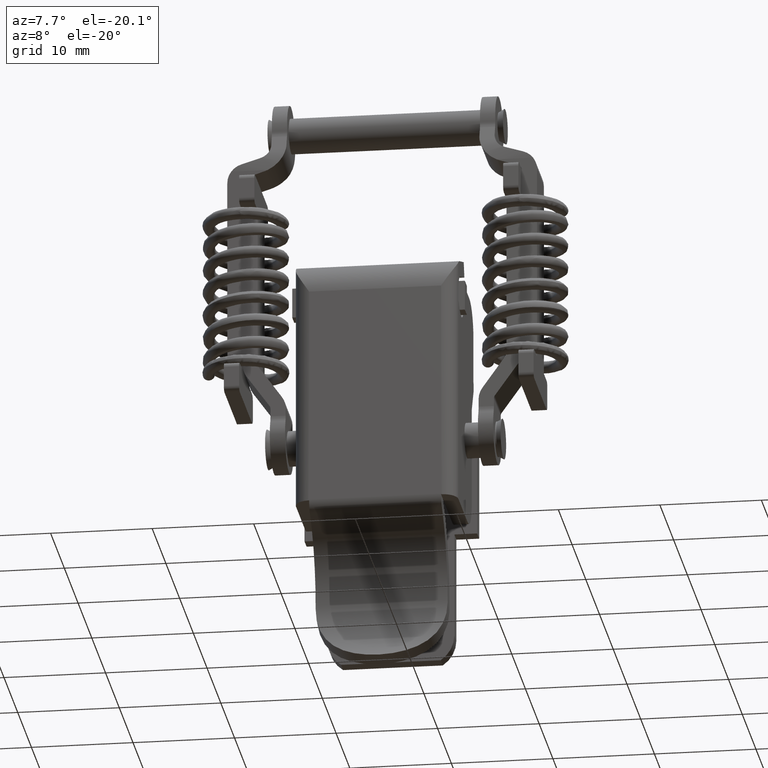
[diagram: clean part render]
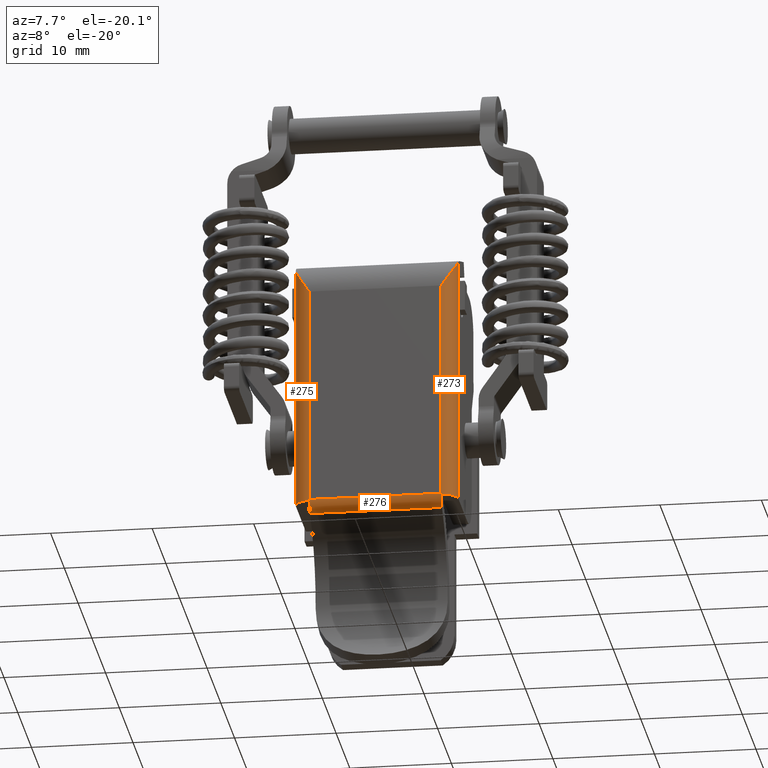
[diagram: same view with one multi-face feature highlighted, each face labeled with its STEP entity id]
A machine part, auxiliary view. The highlighted faces form ONE feature: a constant-radius fillet chain: 3 tangent blend faces with common blend radius 1.5 mm. The faces share edges in the B-rep.
Their STEP definitions:
[1] entity #276 (Cylinder):
#276=ADVANCED_FACE('',(#899),#898,.T.);
#898=CYLINDRICAL_SURFACE('',#2917,1.50000000000E+00);
#899=FACE_OUTER_BOUND('',#2918,.T.);
#2914=CARTESIAN_POINT('',(-7.91777118995E+00,1.50000000000E+00,9.81426582936E-02));
#2915=DIRECTION('',(-1.00000000000E+00,1.25781194831E-16,6.57347478934E-17));
#2916=DIRECTION('',(1.25781194831E-16,1.00000000000E+00,-1.46364402080E-14));
#2917=AXIS2_PLACEMENT_3D('',#2914,#2915,#2916);
#2918=EDGE_LOOP('',(#6450,#6451,#6452,#6453,#6454,#6455,#6456,#6457));
#6450=ORIENTED_EDGE('',*,*,#7518,.T.);
#6451=ORIENTED_EDGE('',*,*,#7512,.F.);
#6452=ORIENTED_EDGE('',*,*,#7521,.T.);
#6453=ORIENTED_EDGE('',*,*,#7509,.F.);
#6454=ORIENTED_EDGE('',*,*,#7394,.F.);
#6455=ORIENTED_EDGE('',*,*,#7391,.F.);
#6456=ORIENTED_EDGE('',*,*,#7398,.F.);
#6457=ORIENTED_EDGE('',*,*,#7508,.F.);
#7391=EDGE_CURVE('',#8008,#8016,#8017,.T.);
#7394=EDGE_CURVE('',#8016,#8036,#8037,.T.);
#7398=EDGE_CURVE('',#8055,#8008,#8062,.T.);
#7508=EDGE_CURVE('',#8790,#8055,#8797,.T.);
#7509=EDGE_CURVE('',#8036,#8803,#8804,.T.);
#7512=EDGE_CURVE('',#8822,#8823,#8824,.T.);
#7518=EDGE_CURVE('',#8790,#8823,#8862,.T.);
#7521=EDGE_CURVE('',#8822,#8803,#8882,.T.);
#8008=VERTEX_POINT('',#11989);
#8016=VERTEX_POINT('',#11995);
#8017=LINE('',#11996,#11997);
#8036=VERTEX_POINT('',#12042);
#8037=CIRCLE('',#12046,1.50000000000E+00);
#8055=VERTEX_POINT('',#12053);
#8062=CIRCLE('',#12060,1.50000000000E+00);
#8790=VERTEX_POINT('',#12489);
#8797=LINE('',#12494,#12495);
#8803=VERTEX_POINT('',#12497);
#8804=LINE('',#12498,#12499);
#8822=VERTEX_POINT('',#12508);
#8823=VERTEX_POINT('',#12509);
#8824=LINE('',#12510,#12511);
#8862=CIRCLE('',#12555,2.99718841261E+00);
#8882=CIRCLE('',#12569,2.99718841261E+00);
#11989=CARTESIAN_POINT('',(6.50000000000E+00,6.43590164302E-01,-1.13334513837E+00));
#11995=CARTESIAN_POINT('',(-6.50000000000E+00,6.43590164302E-01,-1.13334513837E+00));
#11996=CARTESIAN_POINT('',(6.50000000000E+00,6.43590164302E-01,-1.13334513837E+00));
#11997=VECTOR('',#11998,1.30000000000E+01);
#11998=DIRECTION('',(-1.00000000000E+00,0.00000000000E+00,0.00000000000E+00));
#12042=CARTESIAN_POINT('',(-6.50000000000E+00,3.21410394704E-03,0.00000000000E+00));
#12043=CARTESIAN_POINT('',(-6.50000000000E+00,1.50000000000E+00,9.81426582936E-02));
#12044=DIRECTION('',(-1.00000000000E+00,2.80079636817E-16,-1.94774935163E-16));
#12045=DIRECTION('',(2.46519032882E-31,5.70939890466E-01,8.20991864439E-01));
#12046=AXIS2_PLACEMENT_3D('',#12043,#12044,#12045);
#12053=CARTESIAN_POINT('',(6.50000000000E+00,3.21410394704E-03,0.00000000000E+00));
#12057=CARTESIAN_POINT('',(6.50000000000E+00,1.50000000000E+00,9.81426582936E-02));
#12058=DIRECTION('',(1.00000000000E+00,-5.29533095371E-15,-6.89089658124E-16));
#12059=DIRECTION('',(5.32907051820E-15,9.97857264035E-01,6.54284388624E-02));
#12060=AXIS2_PLACEMENT_3D('',#12057,#12058,#12059);
#12489=CARTESIAN_POINT('',(6.59814265829E+00,3.21410394704E-03,0.00000000000E+00));
#12494=CARTESIAN_POINT('',(6.59814265829E+00,3.21410394704E-03,0.00000000000E+00));
#12495=VECTOR('',#12496,9.81426582936E-02);
#12496=DIRECTION('',(-1.00000000000E+00,0.00000000000E+00,0.00000000000E+00));
#12497=CARTESIAN_POINT('',(-6.59814265829E+00,3.21410394704E-03,0.00000000000E+00));
#12498=CARTESIAN_POINT('',(-6.50000000000E+00,3.21410394704E-03,0.00000000000E+00));
#12499=VECTOR('',#12500,9.81426582935E-02);
#12500=DIRECTION('',(-1.00000000000E+00,0.00000000000E+00,0.00000000000E+00));
#12508=CARTESIAN_POINT('',(-6.50000000000E+00,0.00000000000E+00,9.81426582936E-02));
#12509=CARTESIAN_POINT('',(6.50000000000E+00,0.00000000000E+00,9.81426582936E-02));
#12510=CARTESIAN_POINT('',(-6.50000000000E+00,0.00000000000E+00,9.81426582936E-02));
#12511=VECTOR('',#12512,1.30000000000E+01);
#12512=DIRECTION('',(1.00000000000E+00,0.00000000000E+00,0.00000000000E+00));
#12552=CARTESIAN_POINT('',(6.50001972385E+00,2.99718841248E+00,9.81229344423E-02));
#12553=DIRECTION('',(-7.07106781187E-01,1.18606513499E-13,-7.07106781187E-01));
#12554=DIRECTION('',(-3.27383270364E-02,9.98927626951E-01,3.27383270366E-02));
#12555=AXIS2_PLACEMENT_3D('',#12552,#12553,#12554);
#12566=CARTESIAN_POINT('',(-6.50001972385E+00,2.99718841248E+00,9.81229344425E-02));
#12567=DIRECTION('',(7.07106781187E-01,1.86544808666E-13,-7.07106781187E-01));
#12568=DIRECTION('',(-6.58078480019E-06,9.99999999957E-01,-6.58078453638E-06));
#12569=AXIS2_PLACEMENT_3D('',#12566,#12567,#12568);
[2] entity #275 (Cylinder):
#275=ADVANCED_FACE('',(#889),#888,.T.);
#888=CYLINDRICAL_SURFACE('',#2912,1.50000000000E+00);
#889=FACE_OUTER_BOUND('',#2913,.T.);
#2909=CARTESIAN_POINT('',(-6.50000000000E+00,1.50000000000E+00,2.51670664232E-15));
#2910=DIRECTION('',(5.92118946467E-15,-2.73488026508E-15,-1.00000000000E+00));
#2911=DIRECTION('',(1.00000000000E+00,-2.04281036531E-14,5.92118946467E-15));
#2912=AXIS2_PLACEMENT_3D('',#2909,#2910,#2911);
#2913=EDGE_LOOP('',(#6443,#6444,#6445,#6446,#6447,#6448,#6449));
#6443=ORIENTED_EDGE('',*,*,#7479,.F.);
#6444=ORIENTED_EDGE('',*,*,#7510,.F.);
#6445=ORIENTED_EDGE('',*,*,#7521,.F.);
#6446=ORIENTED_EDGE('',*,*,#7515,.F.);
#6447=ORIENTED_EDGE('',*,*,#7517,.F.);
#6448=ORIENTED_EDGE('',*,*,#7489,.F.);
#6449=ORIENTED_EDGE('',*,*,#7505,.T.);
#7479=EDGE_CURVE('',#8597,#8498,#8604,.T.);
#7489=EDGE_CURVE('',#8666,#8674,#8675,.T.);
#7505=EDGE_CURVE('',#8666,#8498,#8778,.T.);
#7510=EDGE_CURVE('',#8803,#8597,#8810,.T.);
#7515=EDGE_CURVE('',#8837,#8822,#8844,.T.);
#7517=EDGE_CURVE('',#8674,#8837,#8856,.T.);
#7521=EDGE_CURVE('',#8822,#8803,#8882,.T.);
#8498=VERTEX_POINT('',#12317);
#8597=VERTEX_POINT('',#12375);
#8604=LINE('',#12379,#12380);
#8666=VERTEX_POINT('',#12418);
#8674=VERTEX_POINT('',#12424);
#8675=LINE('',#12425,#12426);
#8778=LINE('',#12483,#12484);
#8803=VERTEX_POINT('',#12497);
#8810=CIRCLE('',#12504,1.50000000000E+00);
#8822=VERTEX_POINT('',#12508);
#8837=VERTEX_POINT('',#12517);
#8844=LINE('',#12521,#12522);
#8856=(BOUNDED_CURVE() B_SPLINE_CURVE(3,(#12540,#12541,#12542,#12543,#12544,#12545,#12546,#12547,#12548,#12549,#12550,#12551),.UNSPECIFIED.,.F.,.F.) B_SPLINE_CURVE_WITH_KNOTS((4,2,2,2,2,4),(4.61009087360E-18,4.65844780096E-04,9.31689560192E-04,1.86337912038E-03,2.79506868057E-03,3.72675824077E-03),.UNSPECIFIED.) CURVE() GEOMETRIC_REPRESENTATION_ITEM() RATIONAL_B_SPLINE_CURVE((1.00000000000E+00,1.00000000000E+00,1.00000000000E+00,1.00000000000E+00,1.00000000000E+00,1.00000000000E+00,1.00000000000E+00,1.00000000000E+00,1.00000000000E+00,1.00000000000E+00,1.00000000000E+00,1.00000000000E+00)) REPRESENTATION_ITEM('') );
#8882=CIRCLE('',#12569,2.99718841261E+00);
#12317=CARTESIAN_POINT('',(-8.00000000000E+00,1.50000298831E+00,2.06506743654E+01));
#12375=CARTESIAN_POINT('',(-8.00000000000E+00,1.50000000000E+00,0.00000000000E+00));
#12379=CARTESIAN_POINT('',(-8.00000000000E+00,1.50000000000E+00,0.00000000000E+00));
#12380=VECTOR('',#12381,2.06506743654E+01);
#12381=DIRECTION('',(0.00000000000E+00,0.00000000000E+00,1.00000000000E+00));
#12418=CARTESIAN_POINT('',(-8.00000000000E+00,1.50000000000E+00,2.16951480700E+01));
#12424=CARTESIAN_POINT('',(-8.00000000000E+00,1.50000000000E+00,2.45674293933E+01));
#12425=CARTESIAN_POINT('',(-8.00000000000E+00,1.50000000000E+00,2.16951480700E+01));
#12426=VECTOR('',#12427,2.87228132327E+00);
#12427=DIRECTION('',(0.00000000000E+00,0.00000000000E+00,1.00000000000E+00));
#12483=CARTESIAN_POINT('',(-8.00000000000E+00,1.50000000000E+00,2.16951480700E+01));
#12484=VECTOR('',#12485,1.04447370463E+00);
#12485=DIRECTION('',(0.00000000000E+00,0.00000000000E+00,-1.00000000000E+00));
#12497=CARTESIAN_POINT('',(-6.59814265829E+00,3.21410394704E-03,0.00000000000E+00));
#12501=CARTESIAN_POINT('',(-6.50000000000E+00,1.50000000000E+00,0.00000000000E+00));
#12502=DIRECTION('',(-0.00000000000E+00,0.00000000000E+00,-1.00000000000E+00));
#12503=DIRECTION('',(6.54284388624E-02,9.97857264035E-01,-0.00000000000E+00));
#12504=AXIS2_PLACEMENT_3D('',#12501,#12502,#12503);
#12508=CARTESIAN_POINT('',(-6.50000000000E+00,0.00000000000E+00,9.81426582936E-02));
#12517=CARTESIAN_POINT('',(-6.50000000000E+00,4.33680868994E-16,2.16951480700E+01));
#12521=CARTESIAN_POINT('',(-6.50000000000E+00,0.00000000000E+00,2.16951480700E+01));
#12522=VECTOR('',#12523,2.15970054117E+01);
#12523=DIRECTION('',(0.00000000000E+00,0.00000000000E+00,-1.00000000000E+00));
#12540=CARTESIAN_POINT('',(-8.00000000000E+00,1.50000000000E+00,2.45674293933E+01));
#12541=CARTESIAN_POINT('',(-8.00000000000E+00,1.37041336032E+00,2.44771968394E+01));
#12542=CARTESIAN_POINT('',(-7.98355294348E+00,1.24984653414E+00,2.43803248292E+01));
#12543=CARTESIAN_POINT('',(-7.92731748669E+00,1.02432060714E+00,2.41739333354E+01));
#12544=CARTESIAN_POINT('',(-7.88685830460E+00,9.18545763609E-01,2.40632893869E+01));
#12545=CARTESIAN_POINT('',(-7.74187859407E+00,6.31900062309E-01,2.37229547254E+01));
#12546=CARTESIAN_POINT('',(-7.61425893342E+00,4.78229080425E-01,2.34828854972E+01));
#12547=CARTESIAN_POINT('',(-7.32655137522E+00,2.34139973409E-01,2.29840479443E+01));
#12548=CARTESIAN_POINT('',(-7.17001152178E+00,1.46757745010E-01,2.27319651809E+01));
#12549=CARTESIAN_POINT('',(-6.84296977647E+00,2.94382799622E-02,2.22190036699E+01));
#12550=CARTESIAN_POINT('',(-6.67010242378E+00,5.11607900142E-16,2.19549841595E+01));
#12551=CARTESIAN_POINT('',(-6.50000000000E+00,-1.10867685999E-27,2.16951480700E+01));
#12566=CARTESIAN_POINT('',(-6.50001972385E+00,2.99718841248E+00,9.81229344425E-02));
#12567=DIRECTION('',(7.07106781187E-01,1.86544808666E-13,-7.07106781187E-01));
#12568=DIRECTION('',(-6.58078480019E-06,9.99999999957E-01,-6.58078453638E-06));
#12569=AXIS2_PLACEMENT_3D('',#12566,#12567,#12568);
[3] entity #273 (Cylinder):
#273=ADVANCED_FACE('',(#868),#867,.T.);
#867=CYLINDRICAL_SURFACE('',#2901,1.50000000000E+00);
#868=FACE_OUTER_BOUND('',#2902,.T.);
#2898=CARTESIAN_POINT('',(6.50000000000E+00,1.50000000000E+00,2.45674293933E+01));
#2899=DIRECTION('',(-3.55271367880E-15,3.75806783593E-15,1.00000000000E+00));
#2900=DIRECTION('',(-1.00000000000E+00,2.62012633812E-14,-3.55271367880E-15));
#2901=AXIS2_PLACEMENT_3D('',#2898,#2899,#2900);
#2902=EDGE_LOOP('',(#6420,#6421,#6422,#6423,#6424,#6425,#6426));
#6420=ORIENTED_EDGE('',*,*,#7516,.F.);
#6421=ORIENTED_EDGE('',*,*,#7513,.F.);
#6422=ORIENTED_EDGE('',*,*,#7518,.F.);
#6423=ORIENTED_EDGE('',*,*,#7507,.F.);
#6424=ORIENTED_EDGE('',*,*,#7494,.F.);
#6425=ORIENTED_EDGE('',*,*,#7506,.F.);
#6426=ORIENTED_EDGE('',*,*,#7483,.F.);
#7483=EDGE_CURVE('',#8624,#8632,#8633,.T.);
#7494=EDGE_CURVE('',#8202,#8708,#8709,.T.);
#7506=EDGE_CURVE('',#8632,#8202,#8784,.T.);
#7507=EDGE_CURVE('',#8708,#8790,#8791,.T.);
#7513=EDGE_CURVE('',#8823,#8830,#8831,.T.);
#7516=EDGE_CURVE('',#8830,#8624,#8850,.T.);
#7518=EDGE_CURVE('',#8790,#8823,#8862,.T.);
#8202=VERTEX_POINT('',#12141);
#8624=VERTEX_POINT('',#12392);
#8632=VERTEX_POINT('',#12398);
#8633=LINE('',#12399,#12400);
#8708=VERTEX_POINT('',#12444);
#8709=LINE('',#12445,#12446);
#8784=LINE('',#12486,#12487);
#8790=VERTEX_POINT('',#12489);
#8791=CIRCLE('',#12493,1.50000000000E+00);
#8823=VERTEX_POINT('',#12509);
#8830=VERTEX_POINT('',#12513);
#8831=LINE('',#12514,#12515);
#8850=(BOUNDED_CURVE() B_SPLINE_CURVE(3,(#12524,#12525,#12526,#12527,#12528,#12529,#12530,#12531,#12532,#12533,#12534,#12535,#12536,#12537,#12538,#12539),.UNSPECIFIED.,.F.,.F.) B_SPLINE_CURVE_WITH_KNOTS((4,2,2,2,2,2,2,4),(-1.18321678488E-05,4.52071537899E-04,9.15975243646E-04,1.84378265514E-03,2.30768636089E-03,2.77159006664E-03,3.23549377238E-03,3.69939747813E-03),.UNSPECIFIED.) CURVE() GEOMETRIC_REPRESENTATION_ITEM() RATIONAL_B_SPLINE_CURVE((1.00000000000E+00,1.00000000000E+00,1.00000000000E+00,1.00000000000E+00,1.00000000000E+00,1.00000000000E+00,1.00000000000E+00,1.00000000000E+00,1.00000000000E+00,1.00000000000E+00,1.00000000000E+00,1.00000000000E+00,1.00000000000E+00,1.00000000000E+00,1.00000000000E+00,1.00000000000E+00)) REPRESENTATION_ITEM('') );
#8862=CIRCLE('',#12555,2.99718841261E+00);
#12141=CARTESIAN_POINT('',(8.00000000000E+00,1.50000000000E+00,2.06506764462E+01));
#12392=CARTESIAN_POINT('',(8.00000000000E+00,1.50000000000E+00,2.45674293933E+01));
#12398=CARTESIAN_POINT('',(8.00000000000E+00,1.50000000000E+00,2.16951480700E+01));
#12399=CARTESIAN_POINT('',(8.00000000000E+00,1.50000000000E+00,2.45674293933E+01));
#12400=VECTOR('',#12401,2.87228132327E+00);
#12401=DIRECTION('',(0.00000000000E+00,0.00000000000E+00,-1.00000000000E+00));
#12444=CARTESIAN_POINT('',(8.00000000000E+00,1.50000000000E+00,0.00000000000E+00));
#12445=CARTESIAN_POINT('',(8.00000000000E+00,1.50000000000E+00,2.06506764462E+01));
#12446=VECTOR('',#12447,2.06506764462E+01);
#12447=DIRECTION('',(0.00000000000E+00,0.00000000000E+00,-1.00000000000E+00));
#12486=CARTESIAN_POINT('',(8.00000000000E+00,1.50000000000E+00,2.16951480700E+01));
#12487=VECTOR('',#12488,1.04447162386E+00);
#12488=DIRECTION('',(0.00000000000E+00,0.00000000000E+00,-1.00000000000E+00));
#12489=CARTESIAN_POINT('',(6.59814265829E+00,3.21410394704E-03,0.00000000000E+00));
#12490=CARTESIAN_POINT('',(6.50000000000E+00,1.50000000000E+00,0.00000000000E+00));
#12491=DIRECTION('',(0.00000000000E+00,0.00000000000E+00,-1.00000000000E+00));
#12492=DIRECTION('',(-1.00000000000E+00,-0.00000000000E+00,-0.00000000000E+00));
#12493=AXIS2_PLACEMENT_3D('',#12490,#12491,#12492);
#12509=CARTESIAN_POINT('',(6.50000000000E+00,0.00000000000E+00,9.81426582936E-02));
#12513=CARTESIAN_POINT('',(6.50000000000E+00,0.00000000000E+00,2.16951480700E+01));
#12514=CARTESIAN_POINT('',(6.50000000000E+00,0.00000000000E+00,9.81426582936E-02));
#12515=VECTOR('',#12516,2.15970054117E+01);
#12516=DIRECTION('',(0.00000000000E+00,0.00000000000E+00,1.00000000000E+00));
#12524=CARTESIAN_POINT('',(6.50000000000E+00,1.81135736711E-15,2.16951480700E+01));
#12525=CARTESIAN_POINT('',(6.58469682169E+00,2.29175351791E-15,2.18245247745E+01));
#12526=CARTESIAN_POINT('',(6.67083557907E+00,7.31651955111E-03,2.19561045751E+01));
#12527=CARTESIAN_POINT('',(6.83909937457E+00,3.63400729517E-02,2.22147595613E+01));
#12528=CARTESIAN_POINT('',(6.92223072152E+00,5.80412945653E-02,2.23433612664E+01));
#12529=CARTESIAN_POINT('',(7.16732423328E+00,1.45462023720E-01,2.27276766543E+01));
#12530=CARTESIAN_POINT('',(7.32698753194E+00,2.34587379329E-01,2.29848376443E+01));
#12531=CARTESIAN_POINT('',(7.54157484628E+00,4.16525861300E-01,2.33568465780E+01));
#12532=CARTESIAN_POINT('',(7.60898555055E+00,4.85106262252E-01,2.34786103770E+01));
#12533=CARTESIAN_POINT('',(7.73308058676E+00,6.40133430808E-01,2.37178900844E+01));
#12534=CARTESIAN_POINT('',(7.79018753714E+00,7.27400635264E-01,2.38363502012E+01));
#12535=CARTESIAN_POINT('',(7.88695087342E+00,9.18741938454E-01,2.40635147274E+01));
#12536=CARTESIAN_POINT('',(7.92677248053E+00,1.02257214234E+00,2.41722268652E+01));
#12537=CARTESIAN_POINT('',(7.98344257975E+00,1.24897174853E+00,2.43796293902E+01));
#12538=CARTESIAN_POINT('',(8.00000000000E+00,1.37218517484E+00,2.44784305726E+01));
#12539=CARTESIAN_POINT('',(8.00000000000E+00,1.50000000000E+00,2.45674293933E+01));
#12552=CARTESIAN_POINT('',(6.50001972385E+00,2.99718841248E+00,9.81229344423E-02));
#12553=DIRECTION('',(-7.07106781187E-01,1.18606513499E-13,-7.07106781187E-01));
#12554=DIRECTION('',(-3.27383270364E-02,9.98927626951E-01,3.27383270366E-02));
#12555=AXIS2_PLACEMENT_3D('',#12552,#12553,#12554);